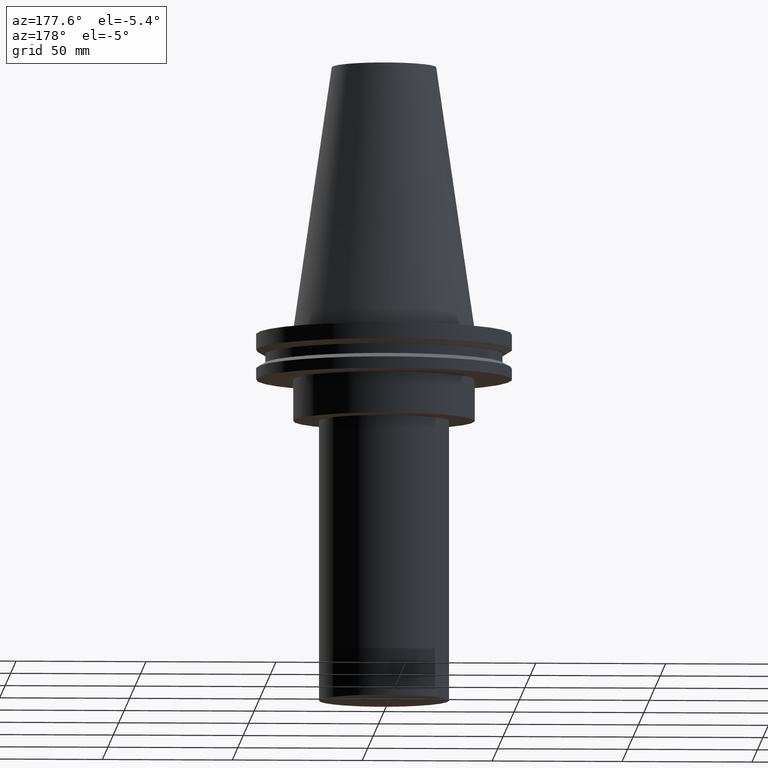
[diagram: clean part render]
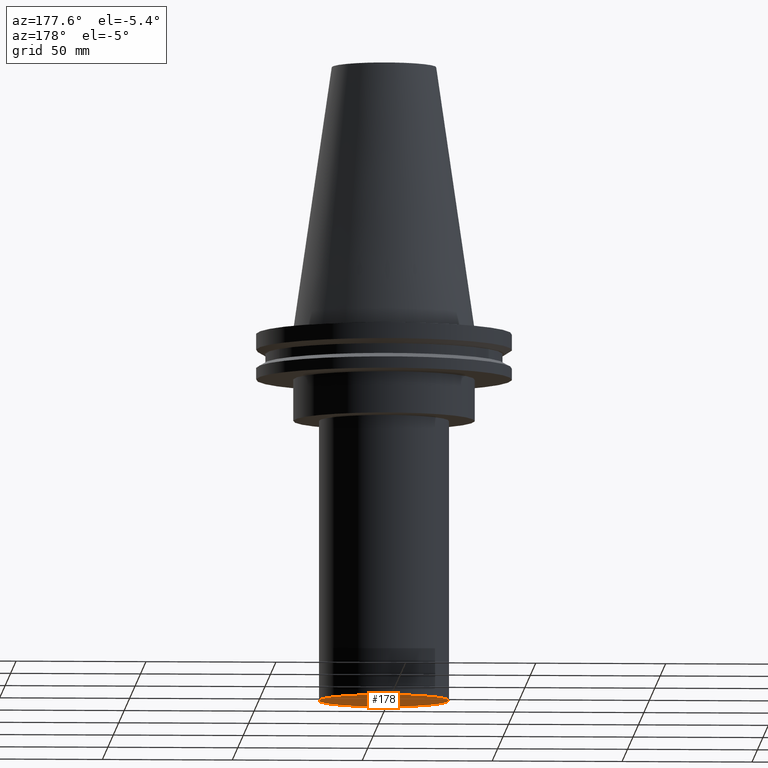
[diagram: same view with one face highlighted and labeled with its STEP entity id]
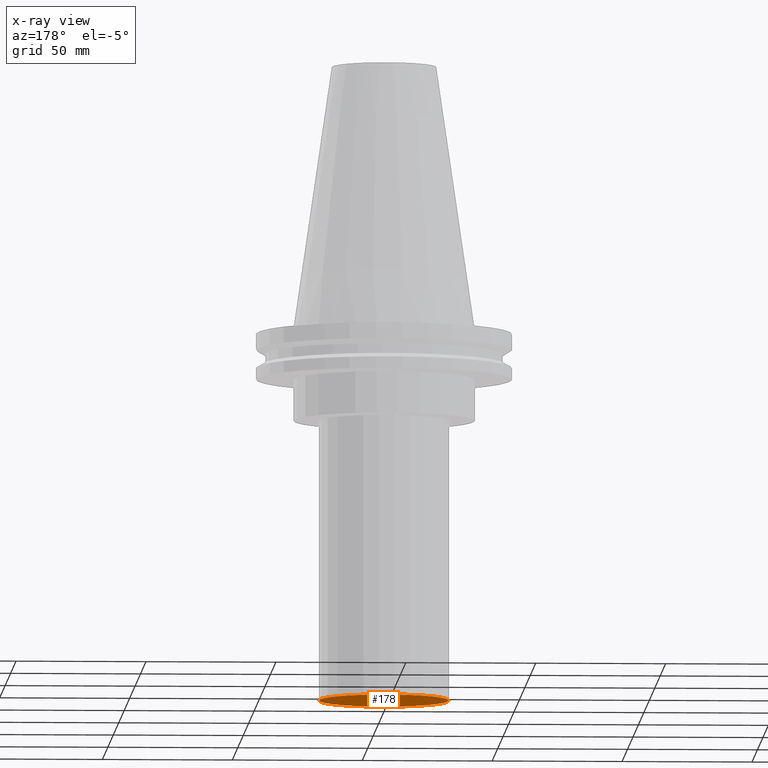
[diagram: x-ray of the same camera — body ghosted, the highlighted face saturated]
A machine part, auxiliary view. The second image highlights one B-rep face of the part: STEP entity #178.
The next image is the same camera in x-ray: the body ghosted, the highlighted face saturated — about 0% of this face is hidden behind the body in this view.
In plain terms, the highlighted planar face has unit normal (0, -0, 1).
Its self-contained STEP definition (entity closure, byte-faithful):
#17 = CARTESIAN_POINT ( 'NONE',  ( 0.000000000000000000, 25.00000000000000000, -142.9999999999999716 ) ) ;
#93 = VERTEX_POINT ( 'NONE', #286 ) ;
#127 = DIRECTION ( 'NONE',  ( 1.000000000000000000, 0.000000000000000000, 0.000000000000000000 ) ) ;
#156 = PLANE ( 'NONE',  #311 ) ;
#178 = ADVANCED_FACE ( 'NONE', ( #320 ), #156, .F. ) ;
#200 = EDGE_CURVE ( 'NONE', #93, #93, #218, .T. ) ;
#215 = DIRECTION ( 'NONE',  ( -0.000000000000000000, -0.000000000000000000, 1.000000000000000000 ) ) ;
#218 = CIRCLE ( 'NONE', #331, 25.00000000000000000 ) ;
#219 = DIRECTION ( 'NONE',  ( 0.000000000000000000, -0.000000000000000000, 1.000000000000000000 ) ) ;
#258 = CARTESIAN_POINT ( 'NONE',  ( 0.000000000000000000, 0.000000000000000000, -142.9999999999999716 ) ) ;
#286 = CARTESIAN_POINT ( 'NONE',  ( 25.00000000000000000, 0.000000000000000000, -142.9999999999999716 ) ) ;
#311 = AXIS2_PLACEMENT_3D ( 'NONE', #17, #219, #127 ) ;
#320 = FACE_OUTER_BOUND ( 'NONE', #368, .T. ) ;
#331 = AXIS2_PLACEMENT_3D ( 'NONE', #258, #215, #373 ) ;
#368 = EDGE_LOOP ( 'NONE', ( #390 ) ) ;
#373 = DIRECTION ( 'NONE',  ( 1.000000000000000000, 0.000000000000000000, 0.000000000000000000 ) ) ;
#390 = ORIENTED_EDGE ( 'NONE', *, *, #200, .F. ) ;